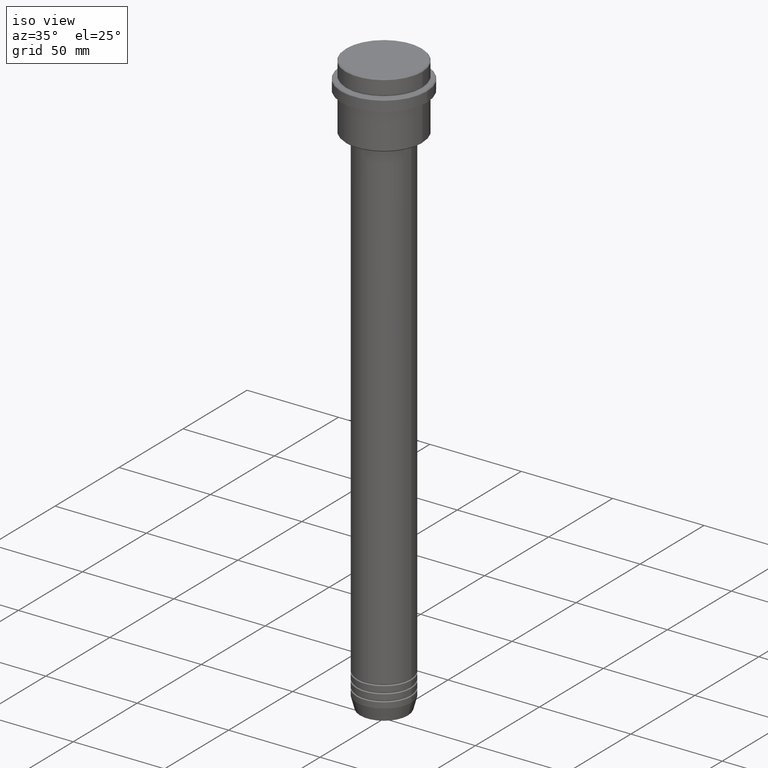
[diagram: clean part render]
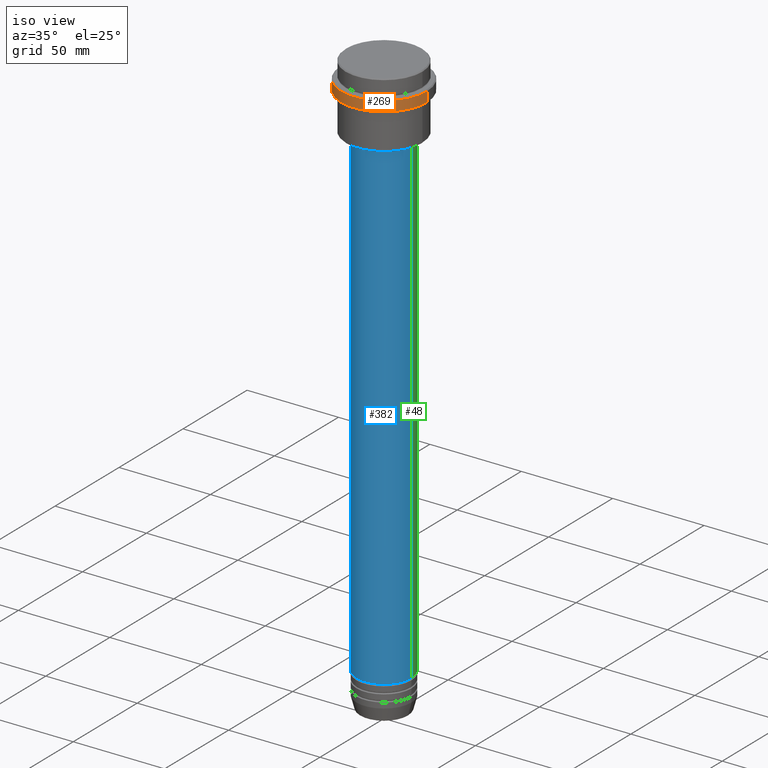
[diagram: same view with three faces highlighted in distinct colors, each labeled with its STEP entity id]
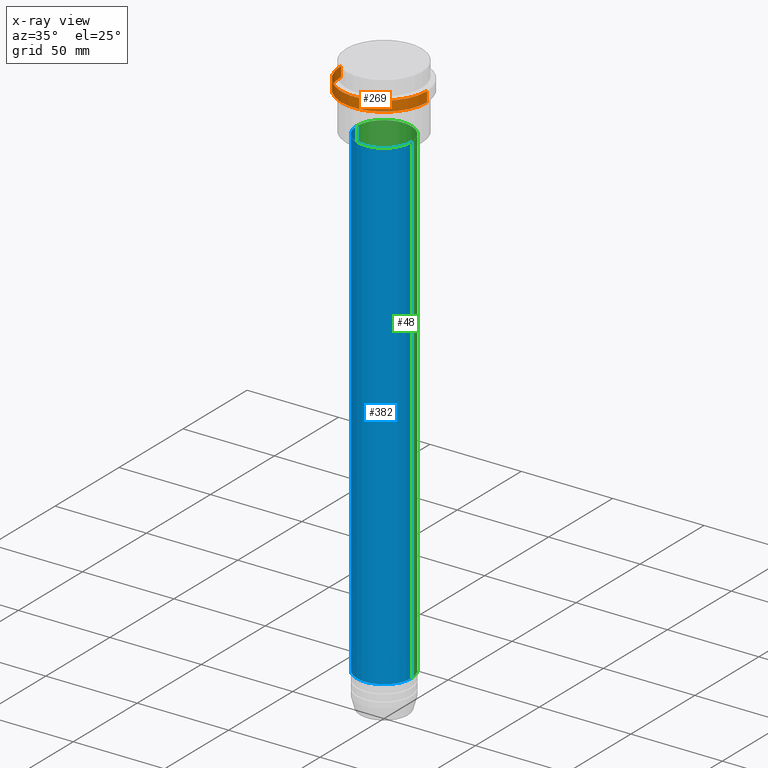
[diagram: x-ray of the same camera — body ghosted, the three highlighted faces saturated]
A machine part, iso view with three faces highlighted in distinct colors.
The next image is the same camera in x-ray (body ghosted, the three faces saturated) — at least one of them is partly hidden behind the body in this view.
Their STEP definitions:

[orange] entity #269 — the highlighted cylindrical surface (partial cylindrical patch) has radius 23.5 mm, axis along (-0, -0, 1).
#34 = ORIENTED_EDGE ( 'NONE', *, *, #1236, .F. ) ;
#76 = VECTOR ( 'NONE', #991, 1000.000000000000000 ) ;
#129 = FACE_OUTER_BOUND ( 'NONE', #1362, .T. ) ;
#133 = DIRECTION ( 'NONE',  ( 1.000000000000000000, 0.000000000000000000, 0.000000000000000000 ) ) ;
#154 = DIRECTION ( 'NONE',  ( -0.000000000000000000, -0.000000000000000000, 1.000000000000000000 ) ) ;
#160 = DIRECTION ( 'NONE',  ( -0.000000000000000000, -0.000000000000000000, 1.000000000000000000 ) ) ;
#184 = LINE ( 'NONE', #603, #882 ) ;
#244 = VERTEX_POINT ( 'NONE', #961 ) ;
#259 = DIRECTION ( 'NONE',  ( 1.000000000000000000, 0.000000000000000000, 0.000000000000000000 ) ) ;
#261 = CIRCLE ( 'NONE', #576, 23.50000000000000000 ) ;
#269 = ADVANCED_FACE ( 'NONE', ( #129 ), #1217, .T. ) ;
#338 = ORIENTED_EDGE ( 'NONE', *, *, #445, .T. ) ;
#352 = CARTESIAN_POINT ( 'NONE',  ( 23.50000000000000000, 0.000000000000000000, -9.500000000000055067 ) ) ;
#366 = CARTESIAN_POINT ( 'NONE',  ( 0.000000000000000000, 0.000000000000000000, -9.500000000000055067 ) ) ;
#375 = AXIS2_PLACEMENT_3D ( 'NONE', #683, #1114, #133 ) ;
#384 = VERTEX_POINT ( 'NONE', #1044 ) ;
#445 = EDGE_CURVE ( 'NONE', #1031, #244, #261, .T. ) ;
#528 = CARTESIAN_POINT ( 'NONE',  ( 23.50000000000000000, 0.000000000000000000, 0.000000000000000000 ) ) ;
#540 = LINE ( 'NONE', #528, #76 ) ;
#573 = CIRCLE ( 'NONE', #1354, 23.50000000000000355 ) ;
#576 = AXIS2_PLACEMENT_3D ( 'NONE', #366, #798, #259 ) ;
#603 = CARTESIAN_POINT ( 'NONE',  ( -23.50000000000000000, 2.877919977996280320E-15, 0.000000000000000000 ) ) ;
#683 = CARTESIAN_POINT ( 'NONE',  ( 0.000000000000000000, 0.000000000000000000, 0.000000000000000000 ) ) ;
#798 = DIRECTION ( 'NONE',  ( 0.000000000000000000, 0.000000000000000000, -1.000000000000000000 ) ) ;
#805 = CARTESIAN_POINT ( 'NONE',  ( 0.000000000000000000, 0.000000000000000000, -15.00000000000000000 ) ) ;
#878 = EDGE_CURVE ( 'NONE', #1051, #1031, #540, .T. ) ;
#882 = VECTOR ( 'NONE', #160, 1000.000000000000000 ) ;
#916 = ORIENTED_EDGE ( 'NONE', *, *, #974, .T. ) ;
#923 = CARTESIAN_POINT ( 'NONE',  ( 23.50000000000000355, 0.000000000000000000, -15.00000000000000000 ) ) ;
#961 = CARTESIAN_POINT ( 'NONE',  ( -23.50000000000000000, 2.877919977996280320E-15, -9.500000000000055067 ) ) ;
#974 = EDGE_CURVE ( 'NONE', #384, #1051, #573, .T. ) ;
#991 = DIRECTION ( 'NONE',  ( -0.000000000000000000, -0.000000000000000000, 1.000000000000000000 ) ) ;
#1031 = VERTEX_POINT ( 'NONE', #352 ) ;
#1044 = CARTESIAN_POINT ( 'NONE',  ( -23.50000000000000711, 2.877919977996281109E-15, -15.00000000000000000 ) ) ;
#1051 = VERTEX_POINT ( 'NONE', #923 ) ;
#1114 = DIRECTION ( 'NONE',  ( -0.000000000000000000, -0.000000000000000000, 1.000000000000000000 ) ) ;
#1115 = DIRECTION ( 'NONE',  ( 1.000000000000000000, 0.000000000000000000, 0.000000000000000000 ) ) ;
#1217 = CYLINDRICAL_SURFACE ( 'NONE', #375, 23.50000000000000000 ) ;
#1236 = EDGE_CURVE ( 'NONE', #384, #244, #184, .T. ) ;
#1251 = ORIENTED_EDGE ( 'NONE', *, *, #878, .T. ) ;
#1354 = AXIS2_PLACEMENT_3D ( 'NONE', #805, #154, #1115 ) ;
#1362 = EDGE_LOOP ( 'NONE', ( #34, #916, #1251, #338 ) ) ;

[blue] entity #382 — the highlighted cylindrical surface (edge-blend (fillet) strip) has radius 15 mm, axis along (-0, -0, 1).
#38 = CARTESIAN_POINT ( 'NONE',  ( 15.00000000000000000, 0.000000000000000000, -301.9999999999998863 ) ) ;
#66 = VERTEX_POINT ( 'NONE', #647 ) ;
#104 = AXIS2_PLACEMENT_3D ( 'NONE', #1237, #1351, #262 ) ;
#150 = ORIENTED_EDGE ( 'NONE', *, *, #947, .T. ) ;
#209 = CARTESIAN_POINT ( 'NONE',  ( 15.00000000000000000, 0.000000000000000000, 0.000000000000000000 ) ) ;
#262 = DIRECTION ( 'NONE',  ( 1.000000000000000000, 0.000000000000000000, 0.000000000000000000 ) ) ;
#310 = CIRCLE ( 'NONE', #1308, 15.00000000000000000 ) ;
#340 = DIRECTION ( 'NONE',  ( -0.000000000000000000, -0.000000000000000000, 1.000000000000000000 ) ) ;
#368 = CYLINDRICAL_SURFACE ( 'NONE', #104, 15.00000000000000000 ) ;
#382 = ADVANCED_FACE ( 'NONE', ( #1012 ), #368, .T. ) ;
#525 = EDGE_CURVE ( 'NONE', #66, #1066, #765, .T. ) ;
#550 = CIRCLE ( 'NONE', #1065, 15.00000000000000000 ) ;
#589 = VERTEX_POINT ( 'NONE', #1158 ) ;
#630 = DIRECTION ( 'NONE',  ( -0.000000000000000000, -0.000000000000000000, 1.000000000000000000 ) ) ;
#631 = CARTESIAN_POINT ( 'NONE',  ( 0.000000000000000000, 0.000000000000000000, -301.9999999999998863 ) ) ;
#647 = CARTESIAN_POINT ( 'NONE',  ( -15.00000000000000000, 1.836970198721029589E-15, -301.9999999999998863 ) ) ;
#688 = VECTOR ( 'NONE', #630, 1000.000000000000000 ) ;
#745 = LINE ( 'NONE', #209, #688 ) ;
#765 = LINE ( 'NONE', #787, #999 ) ;
#768 = DIRECTION ( 'NONE',  ( -0.000000000000000000, -0.000000000000000000, 1.000000000000000000 ) ) ;
#775 = CARTESIAN_POINT ( 'NONE',  ( -15.00000000000000000, 1.836970198721029589E-15, -37.00000000000000711 ) ) ;
#787 = CARTESIAN_POINT ( 'NONE',  ( -15.00000000000000000, 1.836970198721029589E-15, 0.000000000000000000 ) ) ;
#812 = ORIENTED_EDGE ( 'NONE', *, *, #525, .F. ) ;
#818 = EDGE_LOOP ( 'NONE', ( #812, #150, #1176, #1169 ) ) ;
#947 = EDGE_CURVE ( 'NONE', #66, #1095, #550, .T. ) ;
#955 = EDGE_CURVE ( 'NONE', #1066, #589, #310, .T. ) ;
#970 = DIRECTION ( 'NONE',  ( 1.000000000000000000, 0.000000000000000000, 0.000000000000000000 ) ) ;
#999 = VECTOR ( 'NONE', #1213, 1000.000000000000000 ) ;
#1012 = FACE_OUTER_BOUND ( 'NONE', #818, .T. ) ;
#1065 = AXIS2_PLACEMENT_3D ( 'NONE', #631, #768, #1406 ) ;
#1066 = VERTEX_POINT ( 'NONE', #775 ) ;
#1095 = VERTEX_POINT ( 'NONE', #38 ) ;
#1158 = CARTESIAN_POINT ( 'NONE',  ( 15.00000000000000000, 0.000000000000000000, -37.00000000000000711 ) ) ;
#1169 = ORIENTED_EDGE ( 'NONE', *, *, #955, .F. ) ;
#1176 = ORIENTED_EDGE ( 'NONE', *, *, #1394, .T. ) ;
#1202 = CARTESIAN_POINT ( 'NONE',  ( 0.000000000000000000, 0.000000000000000000, -37.00000000000000711 ) ) ;
#1213 = DIRECTION ( 'NONE',  ( -0.000000000000000000, -0.000000000000000000, 1.000000000000000000 ) ) ;
#1237 = CARTESIAN_POINT ( 'NONE',  ( 0.000000000000000000, 0.000000000000000000, 0.000000000000000000 ) ) ;
#1308 = AXIS2_PLACEMENT_3D ( 'NONE', #1202, #340, #970 ) ;
#1351 = DIRECTION ( 'NONE',  ( -0.000000000000000000, -0.000000000000000000, 1.000000000000000000 ) ) ;
#1394 = EDGE_CURVE ( 'NONE', #1095, #589, #745, .T. ) ;
#1406 = DIRECTION ( 'NONE',  ( 1.000000000000000000, 0.000000000000000000, 0.000000000000000000 ) ) ;

[green] entity #48 — the highlighted cylindrical surface (edge-blend (fillet) strip) has radius 15 mm, axis along (-0, -0, 1).
#1 = CYLINDRICAL_SURFACE ( 'NONE', #1109, 15.00000000000000000 ) ;
#17 = DIRECTION ( 'NONE',  ( 1.000000000000000000, 0.000000000000000000, 0.000000000000000000 ) ) ;
#38 = CARTESIAN_POINT ( 'NONE',  ( 15.00000000000000000, 0.000000000000000000, -301.9999999999998863 ) ) ;
#48 = ADVANCED_FACE ( 'NONE', ( #231 ), #1, .T. ) ;
#66 = VERTEX_POINT ( 'NONE', #647 ) ;
#132 = DIRECTION ( 'NONE',  ( -0.000000000000000000, -0.000000000000000000, 1.000000000000000000 ) ) ;
#209 = CARTESIAN_POINT ( 'NONE',  ( 15.00000000000000000, 0.000000000000000000, 0.000000000000000000 ) ) ;
#231 = FACE_OUTER_BOUND ( 'NONE', #235, .T. ) ;
#235 = EDGE_LOOP ( 'NONE', ( #698, #872, #1059, #600 ) ) ;
#281 = EDGE_CURVE ( 'NONE', #589, #1066, #1070, .T. ) ;
#438 = CARTESIAN_POINT ( 'NONE',  ( 0.000000000000000000, 0.000000000000000000, 0.000000000000000000 ) ) ;
#478 = CARTESIAN_POINT ( 'NONE',  ( 0.000000000000000000, 0.000000000000000000, -301.9999999999998863 ) ) ;
#510 = AXIS2_PLACEMENT_3D ( 'NONE', #866, #1004, #1102 ) ;
#525 = EDGE_CURVE ( 'NONE', #66, #1066, #765, .T. ) ;
#563 = DIRECTION ( 'NONE',  ( 1.000000000000000000, 0.000000000000000000, 0.000000000000000000 ) ) ;
#589 = VERTEX_POINT ( 'NONE', #1158 ) ;
#600 = ORIENTED_EDGE ( 'NONE', *, *, #1394, .F. ) ;
#630 = DIRECTION ( 'NONE',  ( -0.000000000000000000, -0.000000000000000000, 1.000000000000000000 ) ) ;
#647 = CARTESIAN_POINT ( 'NONE',  ( -15.00000000000000000, 1.836970198721029589E-15, -301.9999999999998863 ) ) ;
#684 = AXIS2_PLACEMENT_3D ( 'NONE', #478, #1021, #563 ) ;
#688 = VECTOR ( 'NONE', #630, 1000.000000000000000 ) ;
#698 = ORIENTED_EDGE ( 'NONE', *, *, #1027, .T. ) ;
#745 = LINE ( 'NONE', #209, #688 ) ;
#765 = LINE ( 'NONE', #787, #999 ) ;
#775 = CARTESIAN_POINT ( 'NONE',  ( -15.00000000000000000, 1.836970198721029589E-15, -37.00000000000000711 ) ) ;
#787 = CARTESIAN_POINT ( 'NONE',  ( -15.00000000000000000, 1.836970198721029589E-15, 0.000000000000000000 ) ) ;
#866 = CARTESIAN_POINT ( 'NONE',  ( 0.000000000000000000, 0.000000000000000000, -37.00000000000000711 ) ) ;
#872 = ORIENTED_EDGE ( 'NONE', *, *, #525, .T. ) ;
#999 = VECTOR ( 'NONE', #1213, 1000.000000000000000 ) ;
#1004 = DIRECTION ( 'NONE',  ( -0.000000000000000000, -0.000000000000000000, 1.000000000000000000 ) ) ;
#1021 = DIRECTION ( 'NONE',  ( -0.000000000000000000, -0.000000000000000000, 1.000000000000000000 ) ) ;
#1027 = EDGE_CURVE ( 'NONE', #1095, #66, #1290, .T. ) ;
#1059 = ORIENTED_EDGE ( 'NONE', *, *, #281, .F. ) ;
#1066 = VERTEX_POINT ( 'NONE', #775 ) ;
#1070 = CIRCLE ( 'NONE', #510, 15.00000000000000000 ) ;
#1095 = VERTEX_POINT ( 'NONE', #38 ) ;
#1102 = DIRECTION ( 'NONE',  ( 1.000000000000000000, 0.000000000000000000, 0.000000000000000000 ) ) ;
#1109 = AXIS2_PLACEMENT_3D ( 'NONE', #438, #132, #17 ) ;
#1158 = CARTESIAN_POINT ( 'NONE',  ( 15.00000000000000000, 0.000000000000000000, -37.00000000000000711 ) ) ;
#1213 = DIRECTION ( 'NONE',  ( -0.000000000000000000, -0.000000000000000000, 1.000000000000000000 ) ) ;
#1290 = CIRCLE ( 'NONE', #684, 15.00000000000000000 ) ;
#1394 = EDGE_CURVE ( 'NONE', #1095, #589, #745, .T. ) ;